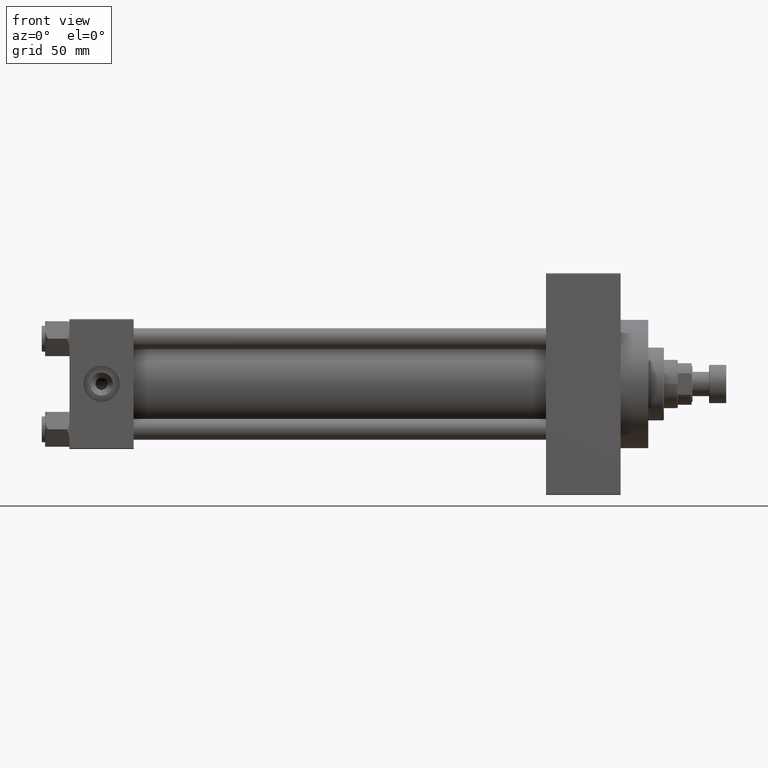
[diagram: clean part render]
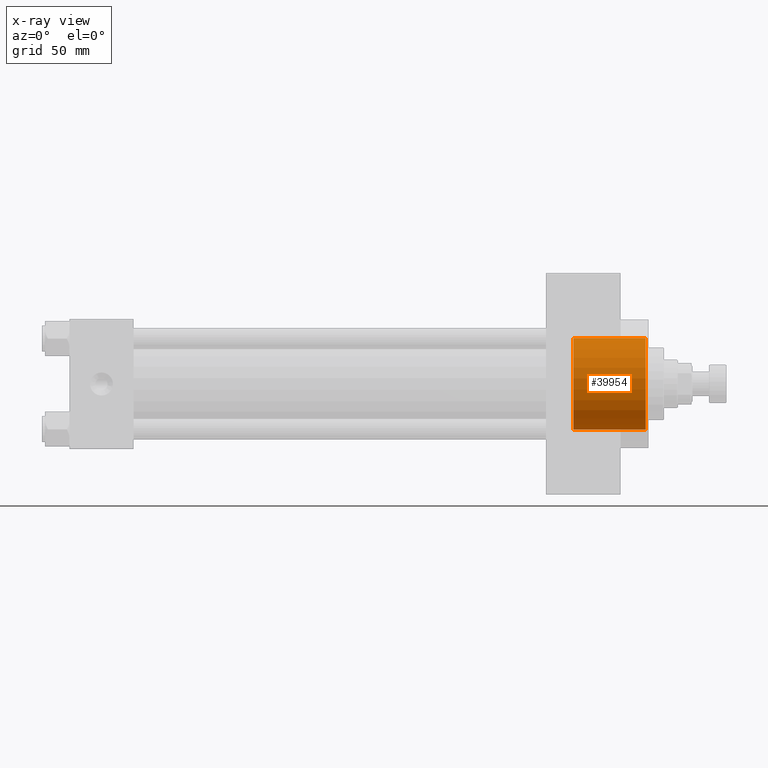
[diagram: x-ray — body ghosted, one internal face saturated and labeled with its STEP entity id]
A machine part, front view, then the same camera in x-ray: the body is ghosted and one INTERNAL B-rep face — a face not visible from any outside direction — is saturated and labeled: STEP entity #39954.
In plain terms, the highlighted cylindrical surface (partial cylindrical patch) has radius 26.5 mm, axis along (1, 0, 0).
Its self-contained STEP definition (entity closure, byte-faithful):
#2874 = CARTESIAN_POINT ( 'NONE',  ( 332.4999999999999432, 0.000000000000000000, -26.50000000000000355 ) ) ;
#4780 = FACE_OUTER_BOUND ( 'NONE', #33482, .T. ) ;
#6187 = EDGE_CURVE ( 'NONE', #34934, #8274, #16754, .T. ) ;
#7117 = AXIS2_PLACEMENT_3D ( 'NONE', #44726, #11560, #36978 ) ;
#8274 = VERTEX_POINT ( 'NONE', #20262 ) ;
#8884 = CYLINDRICAL_SURFACE ( 'NONE', #44235, 26.50000000000000355 ) ;
#11560 = DIRECTION ( 'NONE',  ( 1.000000000000000000, 0.000000000000000000, 0.000000000000000000 ) ) ;
#12428 = VERTEX_POINT ( 'NONE', #18031 ) ;
#12974 = ORIENTED_EDGE ( 'NONE', *, *, #39848, .F. ) ;
#14060 = VERTEX_POINT ( 'NONE', #2874 ) ;
#14283 = CARTESIAN_POINT ( 'NONE',  ( 290.7399999999999523, 0.000000000000000000, -26.50000000000000355 ) ) ;
#16277 = CARTESIAN_POINT ( 'NONE',  ( 290.7399999999999523, 3.245314017740486554E-15, 26.50000000000000355 ) ) ;
#16754 = LINE ( 'NONE', #16277, #24830 ) ;
#17215 = ORIENTED_EDGE ( 'NONE', *, *, #21253, .T. ) ;
#17658 = DIRECTION ( 'NONE',  ( 0.000000000000000000, 0.000000000000000000, -1.000000000000000000 ) ) ;
#18031 = CARTESIAN_POINT ( 'NONE',  ( 290.7399999999999523, 0.000000000000000000, -26.50000000000000355 ) ) ;
#18608 = ORIENTED_EDGE ( 'NONE', *, *, #35192, .F. ) ;
#20237 = DIRECTION ( 'NONE',  ( 0.000000000000000000, 0.000000000000000000, -1.000000000000000000 ) ) ;
#20262 = CARTESIAN_POINT ( 'NONE',  ( 332.4999999999999432, 3.245314017740486554E-15, 26.50000000000000355 ) ) ;
#20592 = DIRECTION ( 'NONE',  ( 1.000000000000000000, 0.000000000000000000, 0.000000000000000000 ) ) ;
#21072 = CARTESIAN_POINT ( 'NONE',  ( 332.4999999999999432, 0.000000000000000000, 0.000000000000000000 ) ) ;
#21253 = EDGE_CURVE ( 'NONE', #8274, #14060, #30632, .T. ) ;
#24830 = VECTOR ( 'NONE', #42909, 1000.000000000000000 ) ;
#30632 = CIRCLE ( 'NONE', #36803, 26.50000000000000355 ) ;
#32305 = CARTESIAN_POINT ( 'NONE',  ( 290.7399999999999523, 3.245314017740486554E-15, 26.50000000000000355 ) ) ;
#32424 = LINE ( 'NONE', #14283, #37906 ) ;
#33386 = DIRECTION ( 'NONE',  ( 1.000000000000000000, -0.000000000000000000, -0.000000000000000000 ) ) ;
#33482 = EDGE_LOOP ( 'NONE', ( #12974, #45450, #17215, #18608 ) ) ;
#34934 = VERTEX_POINT ( 'NONE', #32305 ) ;
#35192 = EDGE_CURVE ( 'NONE', #12428, #14060, #32424, .T. ) ;
#36519 = CIRCLE ( 'NONE', #7117, 26.50000000000000355 ) ;
#36803 = AXIS2_PLACEMENT_3D ( 'NONE', #21072, #20592, #17658 ) ;
#36978 = DIRECTION ( 'NONE',  ( 0.000000000000000000, 0.000000000000000000, -1.000000000000000000 ) ) ;
#37906 = VECTOR ( 'NONE', #33386, 1000.000000000000000 ) ;
#38408 = CARTESIAN_POINT ( 'NONE',  ( 290.7399999999999523, 0.000000000000000000, 0.000000000000000000 ) ) ;
#39848 = EDGE_CURVE ( 'NONE', #34934, #12428, #36519, .T. ) ;
#39954 = ADVANCED_FACE ( 'NONE', ( #4780 ), #8884, .F. ) ;
#41810 = DIRECTION ( 'NONE',  ( 1.000000000000000000, -0.000000000000000000, -0.000000000000000000 ) ) ;
#42909 = DIRECTION ( 'NONE',  ( 1.000000000000000000, -0.000000000000000000, -0.000000000000000000 ) ) ;
#44235 = AXIS2_PLACEMENT_3D ( 'NONE', #38408, #41810, #20237 ) ;
#44726 = CARTESIAN_POINT ( 'NONE',  ( 290.7399999999999523, 0.000000000000000000, 0.000000000000000000 ) ) ;
#45450 = ORIENTED_EDGE ( 'NONE', *, *, #6187, .T. ) ;